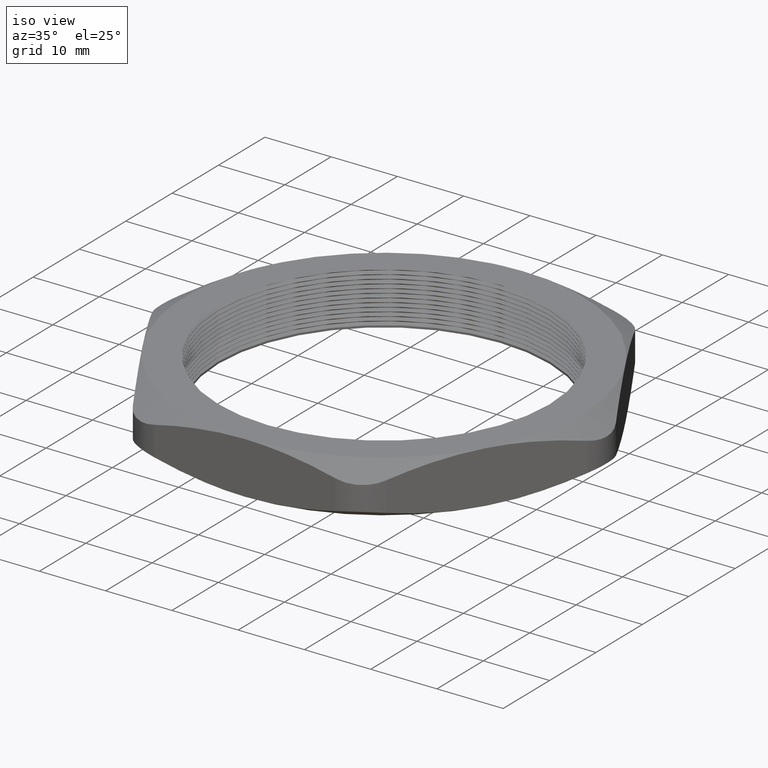
[diagram: clean part render]
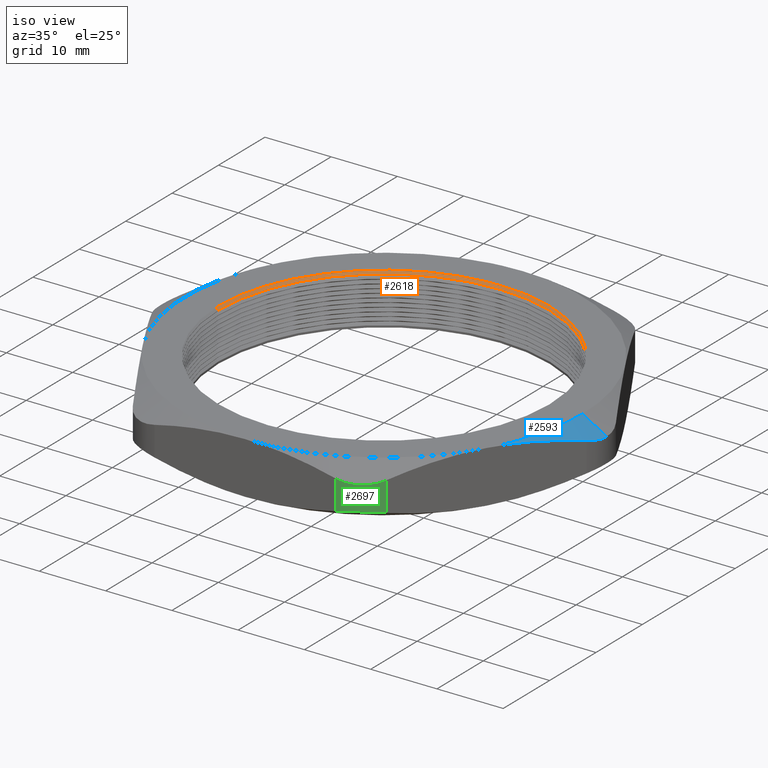
[diagram: same view with three faces highlighted in distinct colors, each labeled with its STEP entity id]
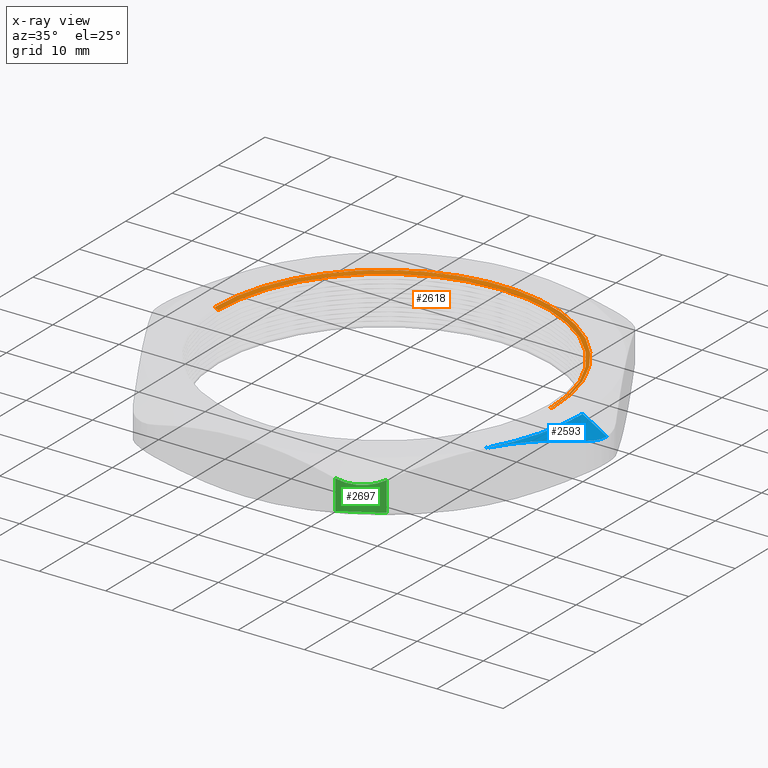
[diagram: x-ray of the same camera — body ghosted, the three highlighted faces saturated]
A machine part, iso view with three faces highlighted in distinct colors.
The next image is the same camera in x-ray (body ghosted, the three faces saturated) — at least one of them is partly hidden behind the body in this view.
Their STEP definitions:

[orange] entity #2618 — the highlighted conical surface has half-angle 60 deg.
#9 = ORIENTED_EDGE ( 'NONE', *, *, #237, .F. ) ;
#10 = ORIENTED_EDGE ( 'NONE', *, *, #2795, .T. ) ;
#11 = ORIENTED_EDGE ( 'NONE', *, *, #2623, .T. ) ;
#33 = ORIENTED_EDGE ( 'NONE', *, *, #2425, .F. ) ;
#34 = EDGE_LOOP ( 'NONE', ( #33, #9, #10, #11 ) ) ;
#237 = EDGE_CURVE ( 'NONE', #2426, #2423, #806, .T. ) ;
#798 = DIRECTION ( 'NONE',  ( 1.000000000000000000, 0.0000000000000000000, 0.0000000000000000000 ) ) ;
#799 = DIRECTION ( 'NONE',  ( 0.0000000000000000000, 0.0000000000000000000, 1.000000000000000000 ) ) ;
#800 = CARTESIAN_POINT ( 'NONE',  ( 0.0000000000000000000, 0.0000000000000000000, 0.2869059892324150000 ) ) ;
#801 = AXIS2_PLACEMENT_3D ( 'NONE', #800, #799, #798 ) ;
#806 = CIRCLE ( 'NONE', #801, 0.9849999999999999900 ) ;
#1218 = CARTESIAN_POINT ( 'NONE',  ( -1.005000000000000100, 0.0000000000000000000, 0.2984529946162076700 ) ) ;
#1247 = CARTESIAN_POINT ( 'NONE',  ( 1.005000000000000100, 1.230770033143090100E-016, 0.2984529946162076700 ) ) ;
#1248 = CARTESIAN_POINT ( 'NONE',  ( 0.9849999999999999900, 1.206277097160143100E-016, 0.2869059892324150000 ) ) ;
#1249 = DIRECTION ( 'NONE',  ( -0.8660254037844360400, 1.060575238724903700E-016, 0.5000000000000045500 ) ) ;
#1250 = VECTOR ( 'NONE', #1249, 39.37007874015748100 ) ;
#1251 = CARTESIAN_POINT ( 'NONE',  ( -0.9849999999999999900, 1.206277097160143100E-016, 0.2869059892324150000 ) ) ;
#1252 = LINE ( 'NONE', #1251, #1250 ) ;
#1253 = CARTESIAN_POINT ( 'NONE',  ( -0.9849999999999999900, 0.0000000000000000000, 0.2869059892324150000 ) ) ;
#1593 = CARTESIAN_POINT ( 'NONE',  ( 0.0000000000000000000, 0.0000000000000000000, 0.2869059892324150000 ) ) ;
#1625 = DIRECTION ( 'NONE',  ( 1.000000000000000000, 0.0000000000000000000, 0.0000000000000000000 ) ) ;
#1626 = DIRECTION ( 'NONE',  ( 0.0000000000000000000, 0.0000000000000000000, 1.000000000000000000 ) ) ;
#1627 = AXIS2_PLACEMENT_3D ( 'NONE', #1632, #1626, #1625 ) ;
#1628 = CIRCLE ( 'NONE', #1627, 1.005000000000000100 ) ;
#1629 = DIRECTION ( 'NONE',  ( 1.000000000000000000, 0.0000000000000000000, 0.0000000000000000000 ) ) ;
#1630 = DIRECTION ( 'NONE',  ( 0.0000000000000000000, 0.0000000000000000000, 1.000000000000000000 ) ) ;
#1631 = AXIS2_PLACEMENT_3D ( 'NONE', #1593, #1630, #1629 ) ;
#1632 = CARTESIAN_POINT ( 'NONE',  ( 0.0000000000000000000, 0.0000000000000000000, 0.2984529946162076700 ) ) ;
#1633 = CONICAL_SURFACE ( 'NONE', #1631, 0.9849999999999999900, 1.047197551196592500 ) ;
#1634 = FACE_OUTER_BOUND ( 'NONE', #34, .T. ) ;
#1970 = DIRECTION ( 'NONE',  ( 0.8660254037844360400, 0.0000000000000000000, 0.5000000000000045500 ) ) ;
#1971 = VECTOR ( 'NONE', #1970, 39.37007874015748100 ) ;
#1972 = CARTESIAN_POINT ( 'NONE',  ( 0.9849999999999999900, 0.0000000000000000000, 0.2869059892324150000 ) ) ;
#1977 = LINE ( 'NONE', #1972, #1971 ) ;
#2408 = VERTEX_POINT ( 'NONE', #1218 ) ;
#2423 = VERTEX_POINT ( 'NONE', #1253 ) ;
#2425 = EDGE_CURVE ( 'NONE', #2423, #2408, #1252, .T. ) ;
#2426 = VERTEX_POINT ( 'NONE', #1248 ) ;
#2427 = VERTEX_POINT ( 'NONE', #1247 ) ;
#2618 = ADVANCED_FACE ( 'NONE', ( #1634 ), #1633, .F. ) ;
#2623 = EDGE_CURVE ( 'NONE', #2427, #2408, #1628, .T. ) ;
#2795 = EDGE_CURVE ( 'NONE', #2426, #2427, #1977, .T. ) ;

[blue] entity #2593 — the highlighted conical surface has half-angle 60 deg.
#44 = EDGE_CURVE ( 'NONE', #340, #338, #432, .T. ) ;
#71 = VERTEX_POINT ( 'NONE', #501 ) ;
#338 = VERTEX_POINT ( 'NONE', #1066 ) ;
#340 = VERTEX_POINT ( 'NONE', #1065 ) ;
#380 = VERTEX_POINT ( 'NONE', #814 ) ;
#423 = CARTESIAN_POINT ( 'NONE',  ( 1.290377851638813800, -0.1249999999999994600, 0.2427859541343049500 ) ) ;
#424 = CARTESIAN_POINT ( 'NONE',  ( 1.246431231723729400, -0.2011177785138440200, 0.2638030191195698800 ) ) ;
#425 = CARTESIAN_POINT ( 'NONE',  ( 1.202143552112761200, -0.2778262897493727900, 0.2807020580561907500 ) ) ;
#426 = CARTESIAN_POINT ( 'NONE',  ( 1.135048905416903500, -0.3940376267424817200, 0.2980438790977824000 ) ) ;
#427 = CARTESIAN_POINT ( 'NONE',  ( 1.112573565966477100, -0.4329660565879777700, 0.3024908025705314000 ) ) ;
#428 = CARTESIAN_POINT ( 'NONE',  ( 1.067381612085253100, -0.5112408168035675900, 0.3084714449772222900 ) ) ;
#429 = CARTESIAN_POINT ( 'NONE',  ( 1.044586880877922400, -0.5507224493995391800, 0.3100000000000000500 ) ) ;
#430 = CARTESIAN_POINT ( 'NONE',  ( 1.021909976465637600, -0.5900000000000000800, 0.3100000000000000000 ) ) ;
#432 = B_SPLINE_CURVE_WITH_KNOTS ( 'NONE', 3,
 ( #430, #429, #428, #427, #426, #425, #424, #423 ),
 .UNSPECIFIED., .F., .F.,
 ( 4, 2, 2, 4 ),
 ( 0.01750939737440081500, 0.02093024688783881600, 0.02435109640127682000, 0.03119279542815282100 ),
 .UNSPECIFIED. ) ;
#501 = CARTESIAN_POINT ( 'NONE',  ( 1.323871500692704200, -1.232579635649854100E-024, 0.2269357503463523600 ) ) ;
#814 = CARTESIAN_POINT ( 'NONE',  ( 1.180000000000000200, 0.0000000000000000000, 0.3100000000000000000 ) ) ;
#1065 = CARTESIAN_POINT ( 'NONE',  ( 1.021909976465637600, -0.5900000000000000800, 0.3100000000000000000 ) ) ;
#1066 = CARTESIAN_POINT ( 'NONE',  ( 1.290377851638813800, -0.1249999999999994600, 0.2427859541343049500 ) ) ;
#1401 = DIRECTION ( 'NONE',  ( 0.8660254037844397100, 0.0000000000000000000, -0.4999999999999979500 ) ) ;
#1402 = VECTOR ( 'NONE', #1401, 39.37007874015748900 ) ;
#1403 = CARTESIAN_POINT ( 'NONE',  ( 1.180000000000000200, 0.0000000000000000000, 0.3100000000000000000 ) ) ;
#1408 = LINE ( 'NONE', #1403, #1402 ) ;
#1515 = DIRECTION ( 'NONE',  ( 1.000000000000000000, 0.0000000000000000000, 0.0000000000000000000 ) ) ;
#1516 = DIRECTION ( 'NONE',  ( 0.0000000000000000000, 0.0000000000000000000, -1.000000000000000000 ) ) ;
#1517 = CARTESIAN_POINT ( 'NONE',  ( 0.0000000000000000000, 0.0000000000000000000, 0.3100000000000000000 ) ) ;
#1518 = CARTESIAN_POINT ( 'NONE',  ( 1.323871500692704200, -1.232579635649854100E-024, 0.2269357503463523600 ) ) ;
#1519 = CARTESIAN_POINT ( 'NONE',  ( 1.323871500692704700, -0.01098405379685869400, 0.2269357503463523300 ) ) ;
#1520 = CARTESIAN_POINT ( 'NONE',  ( 1.323150731314134000, -0.02191688359895170900, 0.2272730796241369000 ) ) ;
#1521 = CARTESIAN_POINT ( 'NONE',  ( 1.320270611761772200, -0.04368023203091903800, 0.2286236963736372800 ) ) ;
#1522 = CARTESIAN_POINT ( 'NONE',  ( 1.318082992759608700, -0.05459731993352143200, 0.2296502803749607100 ) ) ;
#1523 = CARTESIAN_POINT ( 'NONE',  ( 1.309510802919501100, -0.08634002578141483600, 0.2336862750730249500 ) ) ;
#1524 = CARTESIAN_POINT ( 'NONE',  ( 1.301193061145003800, -0.1062675076407761400, 0.2376136801013971300 ) ) ;
#1525 = CARTESIAN_POINT ( 'NONE',  ( 1.290377851638813800, -0.1249999999999994600, 0.2427859541343049500 ) ) ;
#1526 = CONICAL_SURFACE ( 'NONE', #1527, 1.180000000000000200, 1.047197551196600100 ) ;
#1527 = AXIS2_PLACEMENT_3D ( 'NONE', #1517, #1516, #1515 ) ;
#1528 = B_SPLINE_CURVE_WITH_KNOTS ( 'NONE', 3,
 ( #1525, #1524, #1523, #1522, #1521, #1520, #1519, #1518 ),
 .UNSPECIFIED., .F., .F.,
 ( 4, 2, 2, 4 ),
 ( 4.336808689942017700E-019, 0.001671790699287646100, 0.002507686048931469000, 0.003343581398575291700 ),
 .UNSPECIFIED. ) ;
#1529 = FACE_OUTER_BOUND ( 'NONE', #2592, .T. ) ;
#2122 = CARTESIAN_POINT ( 'NONE',  ( 0.0000000000000000000, 0.0000000000000000000, 0.3100000000000000000 ) ) ;
#2162 = DIRECTION ( 'NONE',  ( 1.000000000000000000, 0.0000000000000000000, 0.0000000000000000000 ) ) ;
#2163 = DIRECTION ( 'NONE',  ( 0.0000000000000000000, 0.0000000000000000000, 1.000000000000000000 ) ) ;
#2164 = AXIS2_PLACEMENT_3D ( 'NONE', #2122, #2163, #2162 ) ;
#2165 = CIRCLE ( 'NONE', #2164, 1.180000000000000200 ) ;
#2512 = EDGE_CURVE ( 'NONE', #380, #71, #1408, .T. ) ;
#2572 = ORIENTED_EDGE ( 'NONE', *, *, #44, .T. ) ;
#2588 = ORIENTED_EDGE ( 'NONE', *, *, #2589, .T. ) ;
#2589 = EDGE_CURVE ( 'NONE', #338, #71, #1528, .T. ) ;
#2590 = ORIENTED_EDGE ( 'NONE', *, *, #2512, .F. ) ;
#2591 = ORIENTED_EDGE ( 'NONE', *, *, #2894, .F. ) ;
#2592 = EDGE_LOOP ( 'NONE', ( #2590, #2591, #2572, #2588 ) ) ;
#2593 = ADVANCED_FACE ( 'NONE', ( #1529 ), #1526, .T. ) ;
#2894 = EDGE_CURVE ( 'NONE', #340, #380, #2165, .T. ) ;

[green] entity #2697 — the highlighted cylindrical surface (partial cylindrical patch) has radius 6.35 mm, axis along (0, 0, -1).
#38 = VERTEX_POINT ( 'NONE', #397 ) ;
#39 = EDGE_CURVE ( 'NONE', #41, #38, #399, .T. ) ;
#41 = VERTEX_POINT ( 'NONE', #441 ) ;
#45 = VERTEX_POINT ( 'NONE', #431 ) ;
#271 = VERTEX_POINT ( 'NONE', #886 ) ;
#282 = EDGE_CURVE ( 'NONE', #271, #45, #903, .T. ) ;
#395 = DIRECTION ( 'NONE',  ( 0.0000000000000000000, 0.0000000000000000000, -1.000000000000000000 ) ) ;
#396 = CARTESIAN_POINT ( 'NONE',  ( 0.7534421012924615900, -1.054999999999999700, 0.3100000000000000000 ) ) ;
#397 = CARTESIAN_POINT ( 'NONE',  ( 0.7534421012924734700, -1.054999999999979300, 0.06721404586568910400 ) ) ;
#399 = LINE ( 'NONE', #396, #442 ) ;
#431 = CARTESIAN_POINT ( 'NONE',  ( 0.5369357503463517700, -1.179999999999999900, 0.2427859541343050900 ) ) ;
#441 = CARTESIAN_POINT ( 'NONE',  ( 0.7534421012924615900, -1.054999999999999700, 0.2427859541343050700 ) ) ;
#442 = VECTOR ( 'NONE', #395, 39.37007874015748100 ) ;
#886 = CARTESIAN_POINT ( 'NONE',  ( 0.5369357503463517700, -1.179999999999999900, 0.06721404586569487700 ) ) ;
#900 = DIRECTION ( 'NONE',  ( 0.0000000000000000000, 0.0000000000000000000, 1.000000000000000000 ) ) ;
#901 = VECTOR ( 'NONE', #900, 39.37007874015748100 ) ;
#902 = CARTESIAN_POINT ( 'NONE',  ( 0.5369357503463518800, -1.179999999999999900, 0.3100000000000000000 ) ) ;
#903 = LINE ( 'NONE', #902, #901 ) ;
#1578 = CARTESIAN_POINT ( 'NONE',  ( 0.7426406280276902600, -1.073708700491182300, 0.2376202493319566900 ) ) ;
#1579 = CARTESIAN_POINT ( 'NONE',  ( 0.7292618027920843000, -1.091195033875054200, 0.2336283984944735900 ) ) ;
#1580 = CARTESIAN_POINT ( 'NONE',  ( 0.7062144216875241300, -1.114290582444686700, 0.2296370671020661900 ) ) ;
#1581 = CARTESIAN_POINT ( 'NONE',  ( 0.6980114634144939400, -1.121510473299437200, 0.2286275982255480100 ) ) ;
#1582 = CARTESIAN_POINT ( 'NONE',  ( 0.6805205885013933000, -1.134951313671748800, 0.2272701564282439400 ) ) ;
#1583 = CARTESIAN_POINT ( 'NONE',  ( 0.6712656668977311500, -1.141129690300331400, 0.2269317070438220400 ) ) ;
#1584 = CARTESIAN_POINT ( 'NONE',  ( 0.6522617552205255400, -1.152081483259582700, 0.2269398675414509300 ) ) ;
#1585 = CARTESIAN_POINT ( 'NONE',  ( 0.6424447765496058600, -1.156909620522817100, 0.2272802097087084900 ) ) ;
#1586 = CARTESIAN_POINT ( 'NONE',  ( 0.6221819559806109900, -1.165272639550648300, 0.2286349243502649500 ) ) ;
#1587 = CARTESIAN_POINT ( 'NONE',  ( 0.6116474606707503800, -1.168826090778309200, 0.2296625828566581700 ) ) ;
#1588 = CARTESIAN_POINT ( 'NONE',  ( 0.5799181923317212600, -1.177247800526430400, 0.2336981853431923100 ) ) ;
#1589 = CARTESIAN_POINT ( 'NONE',  ( 0.5585335758802321100, -1.179999999999999900, 0.2376214738663906300 ) ) ;
#1590 = CARTESIAN_POINT ( 'NONE',  ( 0.5369357503463517700, -1.179999999999999900, 0.2427859541343050900 ) ) ;
#1595 = B_SPLINE_CURVE_WITH_KNOTS ( 'NONE', 3,
 ( #1590, #1589, #1588, #1587, #1586, #1585, #1584, #1583, #1582, #1581, #1580, #1579, #1578, #1637 ),
 .UNSPECIFIED., .F., .F.,
 ( 4, 2, 2, 2, 2, 2, 4 ),
 ( 1.734723475976807100E-018, 0.001669271586080330300, 0.002503907379120495500, 0.003338543172160661000, 0.004173178965200826000, 0.005007814758240991900, 0.006677086344321321900 ),
 .UNSPECIFIED. ) ;
#1637 = CARTESIAN_POINT ( 'NONE',  ( 0.7534421012924615900, -1.054999999999999700, 0.2427859541343050700 ) ) ;
#1799 = DIRECTION ( 'NONE',  ( -1.000000000000000000, 0.0000000000000000000, 0.0000000000000000000 ) ) ;
#1800 = DIRECTION ( 'NONE',  ( 0.0000000000000000000, 0.0000000000000000000, -1.000000000000000000 ) ) ;
#1801 = AXIS2_PLACEMENT_3D ( 'NONE', #1806, #1800, #1799 ) ;
#1802 = CYLINDRICAL_SURFACE ( 'NONE', #1801, 0.2500000000000000000 ) ;
#1803 = FACE_OUTER_BOUND ( 'NONE', #2684, .T. ) ;
#1806 = CARTESIAN_POINT ( 'NONE',  ( 0.5369357503463518800, -0.9299999999999998300, 0.3100000000000000000 ) ) ;
#2115 = CARTESIAN_POINT ( 'NONE',  ( 0.7295674056394009200, -1.090847786939215500, 0.07630181465680339900 ) ) ;
#2116 = CARTESIAN_POINT ( 'NONE',  ( 0.7426431885255224700, -1.073704265578841600, 0.07237852613345954800 ) ) ;
#2117 = CARTESIAN_POINT ( 'NONE',  ( 0.7534421012924734700, -1.054999999999979300, 0.06721404586568910400 ) ) ;
#2123 = B_SPLINE_CURVE_WITH_KNOTS ( 'NONE', 3,
 ( #2117, #2116, #2115, #2177, #2176, #2175, #2174, #2173, #2172, #2171, #2170, #2169, #2168, #2167 ),
 .UNSPECIFIED., .F., .F.,
 ( 4, 2, 2, 2, 2, 2, 4 ),
 ( 2.535549980481011000E-017, 0.001669271586080379500, 0.002503907379120548900, 0.003338543172160718600, 0.004173178965200888400, 0.005007814758241057800, 0.006677086344321393100 ),
 .UNSPECIFIED. ) ;
#2167 = CARTESIAN_POINT ( 'NONE',  ( 0.5369357503463517700, -1.179999999999999900, 0.06721404586569487700 ) ) ;
#2168 = CARTESIAN_POINT ( 'NONE',  ( 0.5585386968758989700, -1.180000000000000400, 0.07237975066804398800 ) ) ;
#2169 = CARTESIAN_POINT ( 'NONE',  ( 0.5803717184231815800, -1.177156764165109100, 0.07637160150552729800 ) ) ;
#2170 = CARTESIAN_POINT ( 'NONE',  ( 0.6118967407511045600, -1.168744920922673000, 0.08036293289793466900 ) ) ;
#2171 = CARTESIAN_POINT ( 'NONE',  ( 0.6222508287803857300, -1.165250896099419000, 0.08137240177445277700 ) ) ;
#2172 = CARTESIAN_POINT ( 'NONE',  ( 0.6426363754475719100, -1.156823774276411600, 0.08272984357175654200 ) ) ;
#2173 = CARTESIAN_POINT ( 'NONE',  ( 0.6526144673639043800, -1.151897965371896400, 0.08306829295617811100 ) ) ;
#2174 = CARTESIAN_POINT ( 'NONE',  ( 0.6716009541222082200, -1.140915991567783800, 0.08306013245854856900 ) ) ;
#2175 = CARTESIAN_POINT ( 'NONE',  ( 0.6806907329805876900, -1.134828307281973100, 0.08271979029129079800 ) ) ;
#2176 = CARTESIAN_POINT ( 'NONE',  ( 0.6980647301955206200, -1.121461699430810000, 0.08136507564973327600 ) ) ;
#2177 = CARTESIAN_POINT ( 'NONE',  ( 0.7064093568847147300, -1.114115284490251100, 0.08033741714333936200 ) ) ;
#2611 = EDGE_CURVE ( 'NONE', #45, #41, #1595, .T. ) ;
#2666 = ORIENTED_EDGE ( 'NONE', *, *, #2887, .F. ) ;
#2667 = ORIENTED_EDGE ( 'NONE', *, *, #39, .F. ) ;
#2674 = ORIENTED_EDGE ( 'NONE', *, *, #282, .F. ) ;
#2682 = ORIENTED_EDGE ( 'NONE', *, *, #2611, .F. ) ;
#2684 = EDGE_LOOP ( 'NONE', ( #2682, #2674, #2666, #2667 ) ) ;
#2697 = ADVANCED_FACE ( 'NONE', ( #1803 ), #1802, .T. ) ;
#2887 = EDGE_CURVE ( 'NONE', #38, #271, #2123, .T. ) ;